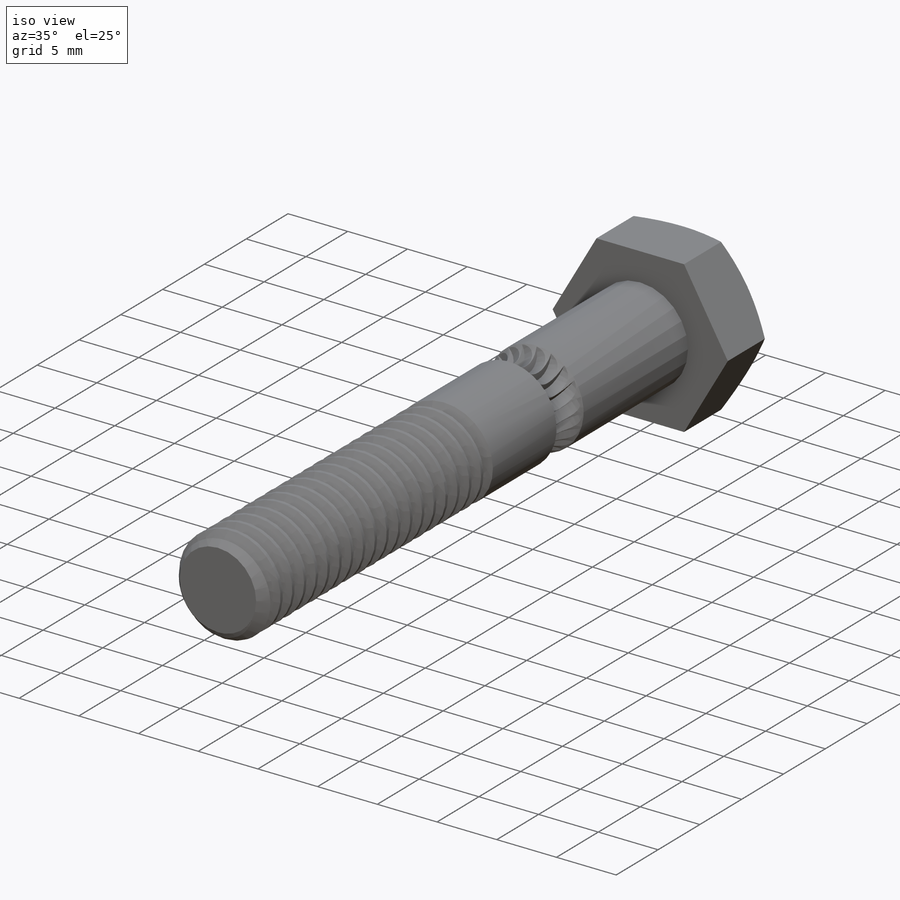
[diagram: iso view]
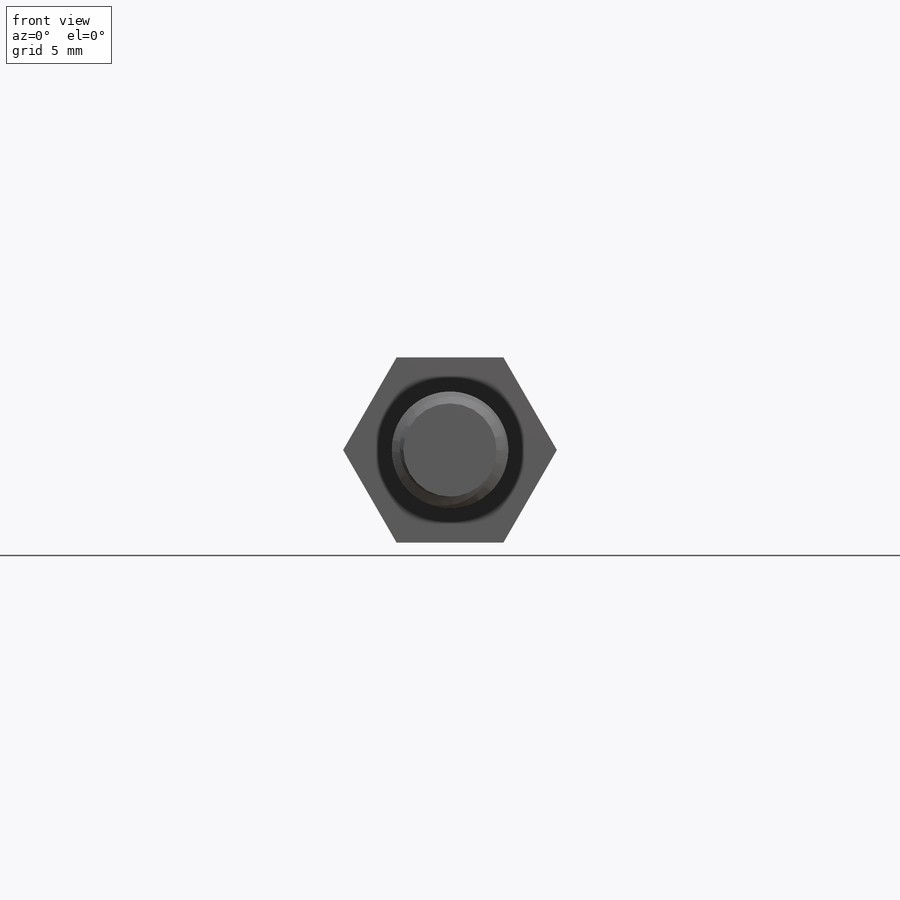
[diagram: front view]
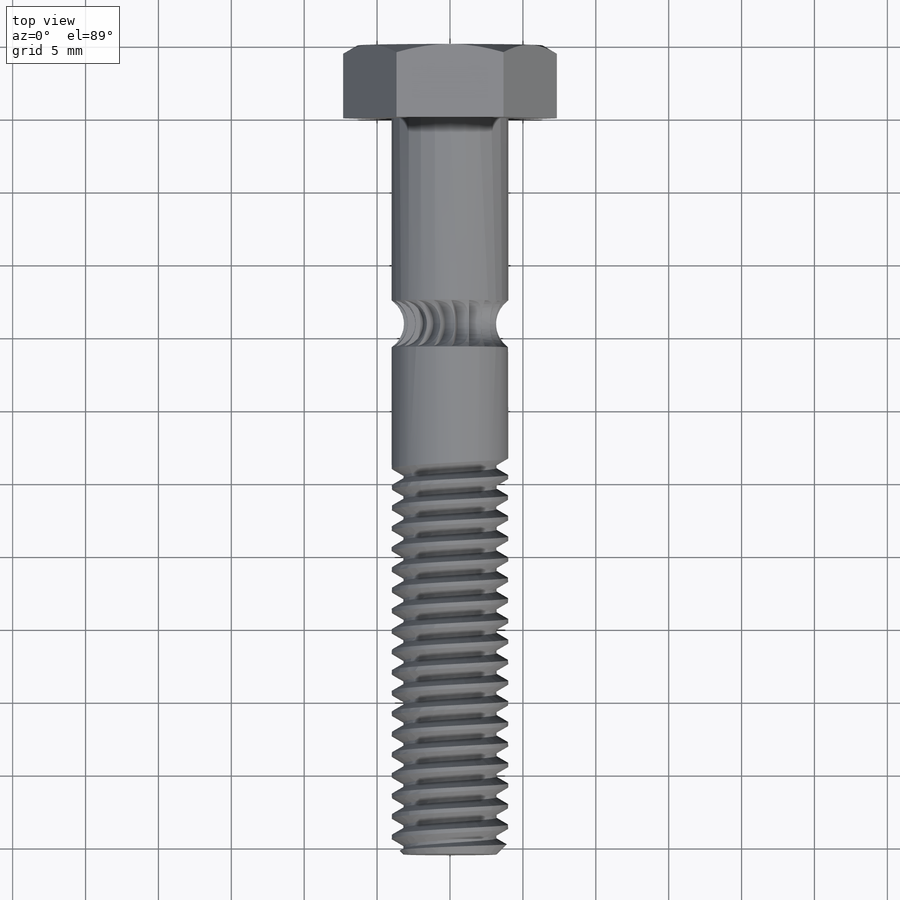
[diagram: top view]
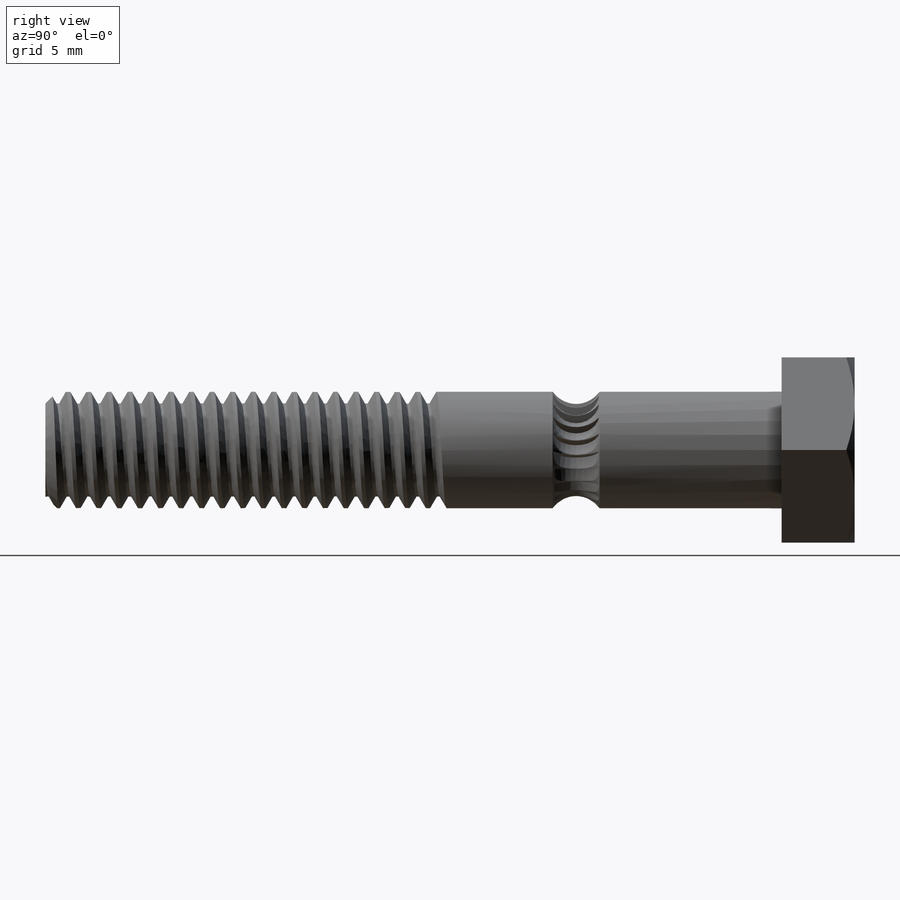
[diagram: right view]
SOLIDWORKS PART (.sldprt)
format: sldprt  version: not decoded by parser v0  size: 708,608 bytes
history: native  units: mm
features: sketch x7, extrude x2, cut_extrude x2, material x1, cut_revolve x1, pattern_circular x1, chamfer x1, helix x1, sweep x1 (+12 scaffold rows collapsed)
feature tree (29):
  scaffold x12  (default folders/planes/origin — collapsed)
  material  "Material <not specified>"
  sketch  "Sketch1"  dims[D1=8.0mm]
  extrude  "Bolt Body"  Depth=50.5mm
  sketch  "Sketch9"  dims[D1=~3.96875mm D2=14.1mm D3=~5.159375mm]
  cut_revolve  "Cut-Revolve1"  Angle=360deg
  sketch  "Sketch3"  dims[D1=12.0mm D2=12.7mm]
  extrude  "Bolt Head"  Depth=5mm
  sketch  "Sketch5"  dims[c1.D1=~4.881809mm c1.D3=3.175mm c2.D1=14.1mm c2.D2=3.95mm c3.D1=14.1mm]
  cut_extrude  "Cut-Extrude2"  Depth=1.31mm
  pattern_circular  "CirPattern1"  Count=20 Angle=18deg
  chamfer  "Chamfer1"  Distance=0.8mm Angle=45deg
  sketch  "Sketch6"  dims[D1=12.7mm]
  cut_extrude  "Cut-Extrude3"  Depth=10mm
  sketch  "Sketch7"  dims[c1.D1=~0.940602mm c2.D1=60.0deg c2.D2=~0.940602mm c3.D2=60.0deg c3.D3=0.8mm c3.D4=~1.128889mm]
  sketch  "Sketch8"
  helix  "Helix/Spiral1"  Pitch=28.222222mm
  sweep  "Cut-Sweep1"
decode coverage: 14 of 16 modeling features carry decoded parameters
note: ~ marks probable driven/reference dimensions
note: suppression state not decoded; provenance and decode notes live in map.json
